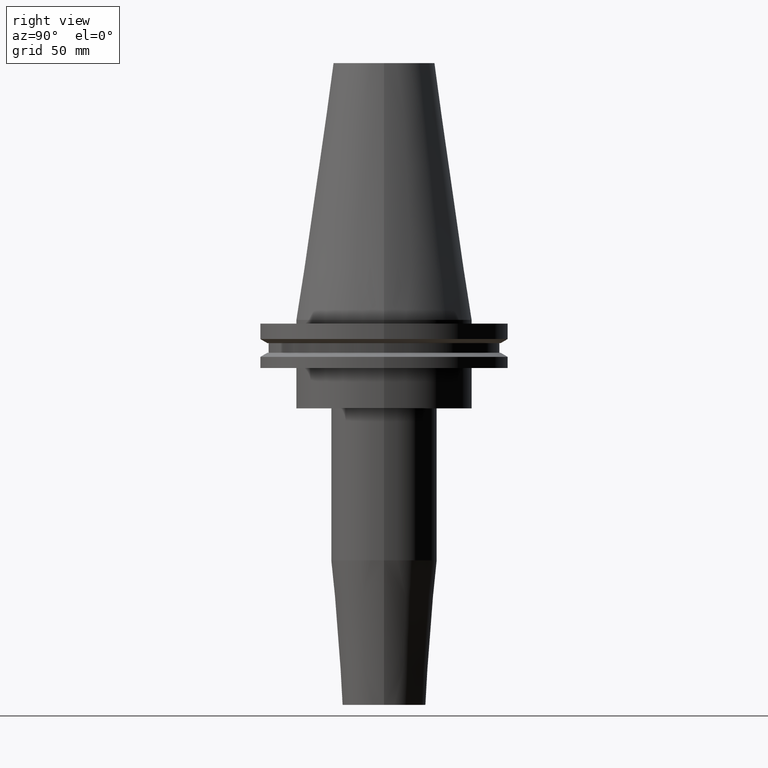
[diagram: clean part render]
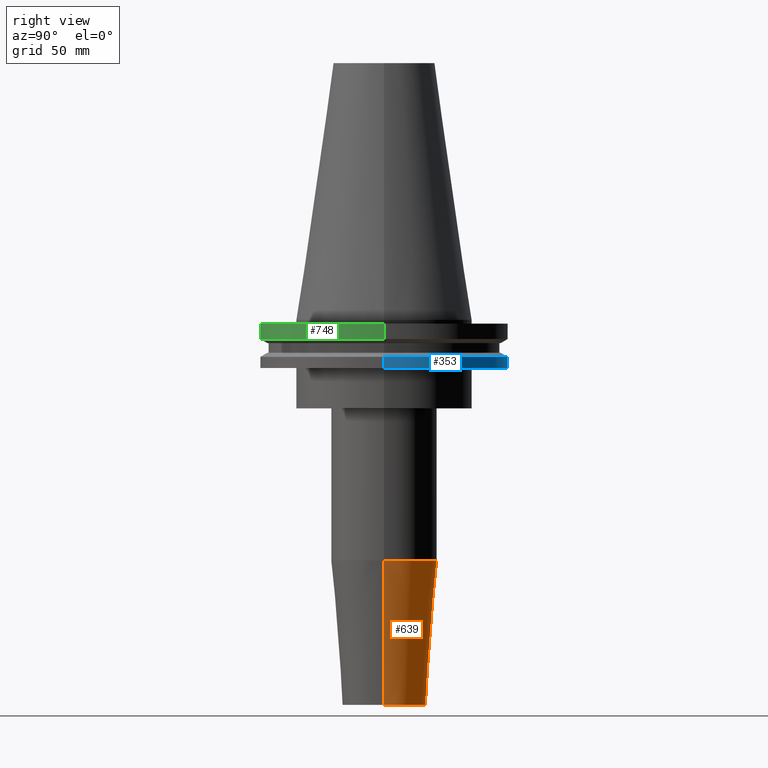
[diagram: same view with three faces highlighted in distinct colors, each labeled with its STEP entity id]
A machine part, right view with three faces highlighted in distinct colors.
Their STEP definitions:

[orange] entity #639 — the highlighted conical surface has half-angle 4.5 deg.
#69 = ORIENTED_EDGE ( 'NONE', *, *, #400, .F. ) ;
#74 = DIRECTION ( 'NONE',  ( -0.000000000000000000, -0.000000000000000000, 1.000000000000000000 ) ) ;
#75 = DIRECTION ( 'NONE',  ( -0.000000000000000000, -0.000000000000000000, 1.000000000000000000 ) ) ;
#97 = CIRCLE ( 'NONE', #771, 16.50000000000000000 ) ;
#114 = CARTESIAN_POINT ( 'NONE',  ( 16.50000000000000000, 0.000000000000000000, -152.4000000000000057 ) ) ;
#123 = ORIENTED_EDGE ( 'NONE', *, *, #481, .F. ) ;
#131 = CARTESIAN_POINT ( 'NONE',  ( 16.50000000000000000, 0.000000000000000000, -152.4000000000000057 ) ) ;
#132 = ORIENTED_EDGE ( 'NONE', *, *, #246, .T. ) ;
#140 = DIRECTION ( 'NONE',  ( 1.000000000000000000, 0.000000000000000000, 0.000000000000000000 ) ) ;
#160 = VERTEX_POINT ( 'NONE', #708 ) ;
#181 = CARTESIAN_POINT ( 'NONE',  ( 0.000000000000000000, 0.000000000000000000, -152.4000000000000057 ) ) ;
#192 = VECTOR ( 'NONE', #516, 999.9999999999998863 ) ;
#204 = CARTESIAN_POINT ( 'NONE',  ( 0.000000000000000000, 0.000000000000000000, -95.22207868720845170 ) ) ;
#216 = CARTESIAN_POINT ( 'NONE',  ( -16.50000000000000000, 2.296212748401287578E-15, -152.4000000000000057 ) ) ;
#246 = EDGE_CURVE ( 'NONE', #484, #469, #97, .T. ) ;
#256 = EDGE_CURVE ( 'NONE', #469, #160, #372, .T. ) ;
#258 = CARTESIAN_POINT ( 'NONE',  ( -16.50000000000000000, 2.020667218593133100E-15, -152.4000000000000057 ) ) ;
#263 = VECTOR ( 'NONE', #525, 999.9999999999998863 ) ;
#275 = CIRCLE ( 'NONE', #758, 21.00000000000000000 ) ;
#338 = DIRECTION ( 'NONE',  ( 1.000000000000000000, 0.000000000000000000, 0.000000000000000000 ) ) ;
#355 = ORIENTED_EDGE ( 'NONE', *, *, #256, .T. ) ;
#372 = LINE ( 'NONE', #258, #192 ) ;
#400 = EDGE_CURVE ( 'NONE', #692, #160, #275, .T. ) ;
#402 = CARTESIAN_POINT ( 'NONE',  ( 0.000000000000000000, 0.000000000000000000, -152.4000000000000057 ) ) ;
#407 = CARTESIAN_POINT ( 'NONE',  ( 21.00000000000000000, 0.000000000000000000, -95.22207868720845170 ) ) ;
#438 = CONICAL_SURFACE ( 'NONE', #660, 16.50000000000000000, 0.07853981633973751431 ) ;
#452 = DIRECTION ( 'NONE',  ( -0.000000000000000000, -0.000000000000000000, 1.000000000000000000 ) ) ;
#469 = VERTEX_POINT ( 'NONE', #216 ) ;
#481 = EDGE_CURVE ( 'NONE', #484, #692, #506, .T. ) ;
#484 = VERTEX_POINT ( 'NONE', #131 ) ;
#506 = LINE ( 'NONE', #114, #263 ) ;
#516 = DIRECTION ( 'NONE',  ( -0.07845909572783764385, 9.608468044709212160E-18, 0.9969173337331286300 ) ) ;
#525 = DIRECTION ( 'NONE',  ( 0.07845909572783764385, 0.000000000000000000, 0.9969173337331286300 ) ) ;
#579 = DIRECTION ( 'NONE',  ( 1.000000000000000000, 0.000000000000000000, 0.000000000000000000 ) ) ;
#639 = ADVANCED_FACE ( 'NONE', ( #665 ), #438, .T. ) ;
#660 = AXIS2_PLACEMENT_3D ( 'NONE', #402, #75, #140 ) ;
#665 = FACE_OUTER_BOUND ( 'NONE', #697, .T. ) ;
#692 = VERTEX_POINT ( 'NONE', #407 ) ;
#697 = EDGE_LOOP ( 'NONE', ( #132, #355, #69, #123 ) ) ;
#708 = CARTESIAN_POINT ( 'NONE',  ( -21.00000000000000000, 2.571758278209441661E-15, -95.22207868720845170 ) ) ;
#758 = AXIS2_PLACEMENT_3D ( 'NONE', #204, #74, #338 ) ;
#771 = AXIS2_PLACEMENT_3D ( 'NONE', #181, #452, #579 ) ;

[blue] entity #353 — the highlighted cylindrical surface (partial cylindrical patch) has radius 49.215 mm, axis along (-0, -0, 1).
#9 = AXIS2_PLACEMENT_3D ( 'NONE', #271, #465, #527 ) ;
#39 = CARTESIAN_POINT ( 'NONE',  ( 49.21499999999998920, 0.000000000000000000, -14.65761014474876944 ) ) ;
#44 = CARTESIAN_POINT ( 'NONE',  ( 0.000000000000000000, 0.000000000000000000, -19.04999999999999716 ) ) ;
#53 = CIRCLE ( 'NONE', #358, 49.21499999999998920 ) ;
#88 = ORIENTED_EDGE ( 'NONE', *, *, #368, .T. ) ;
#101 = VERTEX_POINT ( 'NONE', #176 ) ;
#164 = DIRECTION ( 'NONE',  ( 1.000000000000000000, 0.000000000000000000, 0.000000000000000000 ) ) ;
#176 = CARTESIAN_POINT ( 'NONE',  ( 49.21499999999998920, 0.000000000000000000, -19.04999999999999716 ) ) ;
#188 = LINE ( 'NONE', #513, #726 ) ;
#197 = DIRECTION ( 'NONE',  ( -0.000000000000000000, -0.000000000000000000, 1.000000000000000000 ) ) ;
#210 = ORIENTED_EDGE ( 'NONE', *, *, #598, .F. ) ;
#271 = CARTESIAN_POINT ( 'NONE',  ( 0.000000000000000000, 0.000000000000000000, 101.5999999999999943 ) ) ;
#309 = CARTESIAN_POINT ( 'NONE',  ( -49.21499999999998920, 6.027099222003697037E-15, -14.65761014474876944 ) ) ;
#328 = CIRCLE ( 'NONE', #376, 49.21499999999998920 ) ;
#353 = ADVANCED_FACE ( 'NONE', ( #735 ), #731, .T. ) ;
#358 = AXIS2_PLACEMENT_3D ( 'NONE', #471, #395, #537 ) ;
#368 = EDGE_CURVE ( 'NONE', #796, #747, #674, .T. ) ;
#376 = AXIS2_PLACEMENT_3D ( 'NONE', #44, #759, #164 ) ;
#392 = EDGE_LOOP ( 'NONE', ( #455, #88, #210, #408 ) ) ;
#395 = DIRECTION ( 'NONE',  ( -0.000000000000000000, -0.000000000000000000, 1.000000000000000000 ) ) ;
#408 = ORIENTED_EDGE ( 'NONE', *, *, #485, .F. ) ;
#455 = ORIENTED_EDGE ( 'NONE', *, *, #819, .T. ) ;
#465 = DIRECTION ( 'NONE',  ( -0.000000000000000000, -0.000000000000000000, 1.000000000000000000 ) ) ;
#471 = CARTESIAN_POINT ( 'NONE',  ( 0.000000000000000000, 0.000000000000000000, -14.65761014474876944 ) ) ;
#485 = EDGE_CURVE ( 'NONE', #101, #799, #188, .T. ) ;
#513 = CARTESIAN_POINT ( 'NONE',  ( 49.21499999999998920, 0.000000000000000000, 101.5999999999999943 ) ) ;
#527 = DIRECTION ( 'NONE',  ( 1.000000000000000000, 0.000000000000000000, 0.000000000000000000 ) ) ;
#531 = DIRECTION ( 'NONE',  ( -0.000000000000000000, -0.000000000000000000, 1.000000000000000000 ) ) ;
#537 = DIRECTION ( 'NONE',  ( 1.000000000000000000, 0.000000000000000000, 0.000000000000000000 ) ) ;
#576 = VECTOR ( 'NONE', #531, 1000.000000000000000 ) ;
#598 = EDGE_CURVE ( 'NONE', #799, #747, #53, .T. ) ;
#661 = CARTESIAN_POINT ( 'NONE',  ( -49.21499999999998920, 6.027099222003697037E-15, 101.5999999999999943 ) ) ;
#674 = LINE ( 'NONE', #661, #576 ) ;
#678 = CARTESIAN_POINT ( 'NONE',  ( -49.21499999999998920, 6.027099222003697037E-15, -19.04999999999999716 ) ) ;
#726 = VECTOR ( 'NONE', #197, 1000.000000000000000 ) ;
#731 = CYLINDRICAL_SURFACE ( 'NONE', #9, 49.21499999999998920 ) ;
#735 = FACE_OUTER_BOUND ( 'NONE', #392, .T. ) ;
#747 = VERTEX_POINT ( 'NONE', #309 ) ;
#759 = DIRECTION ( 'NONE',  ( -0.000000000000000000, -0.000000000000000000, 1.000000000000000000 ) ) ;
#796 = VERTEX_POINT ( 'NONE', #678 ) ;
#799 = VERTEX_POINT ( 'NONE', #39 ) ;
#819 = EDGE_CURVE ( 'NONE', #101, #796, #328, .T. ) ;

[green] entity #748 — the highlighted cylindrical surface (partial cylindrical patch) has radius 49.215 mm, axis along (-0, -0, 1).
#12 = CARTESIAN_POINT ( 'NONE',  ( 49.21499999999999631, 0.000000000000000000, 101.5999999999999943 ) ) ;
#14 = EDGE_LOOP ( 'NONE', ( #173, #225, #566, #721 ) ) ;
#33 = EDGE_CURVE ( 'NONE', #308, #370, #315, .T. ) ;
#57 = DIRECTION ( 'NONE',  ( -0.000000000000000000, -0.000000000000000000, 1.000000000000000000 ) ) ;
#92 = CARTESIAN_POINT ( 'NONE',  ( -49.21499999999999631, 6.027099222003697826E-15, -1.499999999999987566 ) ) ;
#156 = CARTESIAN_POINT ( 'NONE',  ( 0.000000000000000000, 0.000000000000000000, 101.5999999999999943 ) ) ;
#157 = DIRECTION ( 'NONE',  ( -0.000000000000000000, -0.000000000000000000, 1.000000000000000000 ) ) ;
#167 = VECTOR ( 'NONE', #280, 1000.000000000000000 ) ;
#173 = ORIENTED_EDGE ( 'NONE', *, *, #724, .F. ) ;
#225 = ORIENTED_EDGE ( 'NONE', *, *, #33, .T. ) ;
#247 = AXIS2_PLACEMENT_3D ( 'NONE', #156, #501, #625 ) ;
#264 = LINE ( 'NONE', #12, #167 ) ;
#278 = CARTESIAN_POINT ( 'NONE',  ( 49.21500000000000341, 0.000000000000000000, -7.602389855251287187 ) ) ;
#280 = DIRECTION ( 'NONE',  ( -0.000000000000000000, -0.000000000000000000, 1.000000000000000000 ) ) ;
#308 = VERTEX_POINT ( 'NONE', #334 ) ;
#315 = CIRCLE ( 'NONE', #437, 49.21500000000000341 ) ;
#334 = CARTESIAN_POINT ( 'NONE',  ( -49.21500000000000341, 6.027099222003699404E-15, -7.602389855251287187 ) ) ;
#337 = EDGE_CURVE ( 'NONE', #370, #414, #264, .T. ) ;
#360 = DIRECTION ( 'NONE',  ( 1.000000000000000000, 0.000000000000000000, 0.000000000000000000 ) ) ;
#370 = VERTEX_POINT ( 'NONE', #278 ) ;
#414 = VERTEX_POINT ( 'NONE', #739 ) ;
#430 = DIRECTION ( 'NONE',  ( -0.000000000000000000, -0.000000000000000000, 1.000000000000000000 ) ) ;
#437 = AXIS2_PLACEMENT_3D ( 'NONE', #489, #157, #360 ) ;
#459 = VECTOR ( 'NONE', #430, 1000.000000000000000 ) ;
#489 = CARTESIAN_POINT ( 'NONE',  ( 0.000000000000000000, 0.000000000000000000, -7.602389855251287187 ) ) ;
#501 = DIRECTION ( 'NONE',  ( -0.000000000000000000, -0.000000000000000000, 1.000000000000000000 ) ) ;
#507 = EDGE_CURVE ( 'NONE', #829, #414, #603, .T. ) ;
#523 = AXIS2_PLACEMENT_3D ( 'NONE', #654, #57, #642 ) ;
#563 = CYLINDRICAL_SURFACE ( 'NONE', #247, 49.21499999999999631 ) ;
#566 = ORIENTED_EDGE ( 'NONE', *, *, #337, .T. ) ;
#603 = CIRCLE ( 'NONE', #523, 49.21499999999999631 ) ;
#625 = DIRECTION ( 'NONE',  ( 1.000000000000000000, 0.000000000000000000, 0.000000000000000000 ) ) ;
#642 = DIRECTION ( 'NONE',  ( 1.000000000000000000, 0.000000000000000000, 0.000000000000000000 ) ) ;
#654 = CARTESIAN_POINT ( 'NONE',  ( 0.000000000000000000, 0.000000000000000000, -1.499999999999987566 ) ) ;
#721 = ORIENTED_EDGE ( 'NONE', *, *, #507, .F. ) ;
#724 = EDGE_CURVE ( 'NONE', #308, #829, #745, .T. ) ;
#739 = CARTESIAN_POINT ( 'NONE',  ( 49.21499999999999631, 0.000000000000000000, -1.499999999999987566 ) ) ;
#745 = LINE ( 'NONE', #820, #459 ) ;
#748 = ADVANCED_FACE ( 'NONE', ( #826 ), #563, .T. ) ;
#820 = CARTESIAN_POINT ( 'NONE',  ( -49.21499999999999631, 6.027099222003697826E-15, 101.5999999999999943 ) ) ;
#826 = FACE_OUTER_BOUND ( 'NONE', #14, .T. ) ;
#829 = VERTEX_POINT ( 'NONE', #92 ) ;